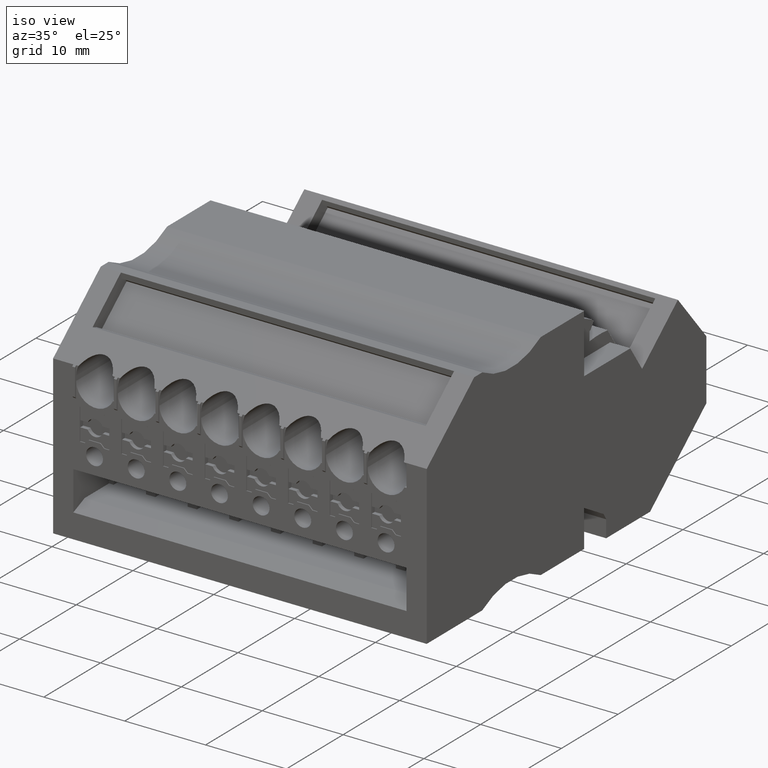
[diagram: clean part render]
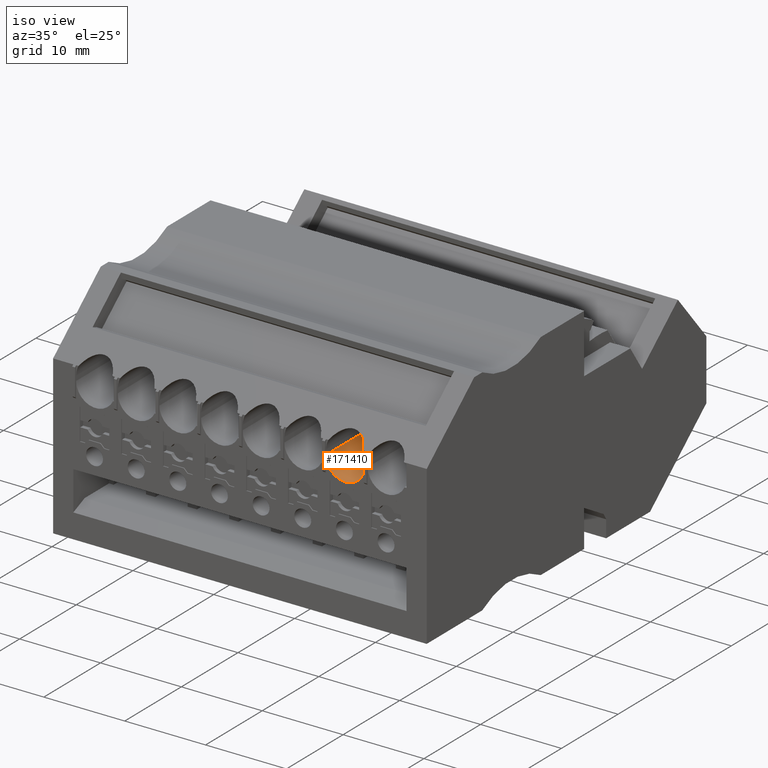
[diagram: same view with one face highlighted and labeled with its STEP entity id]
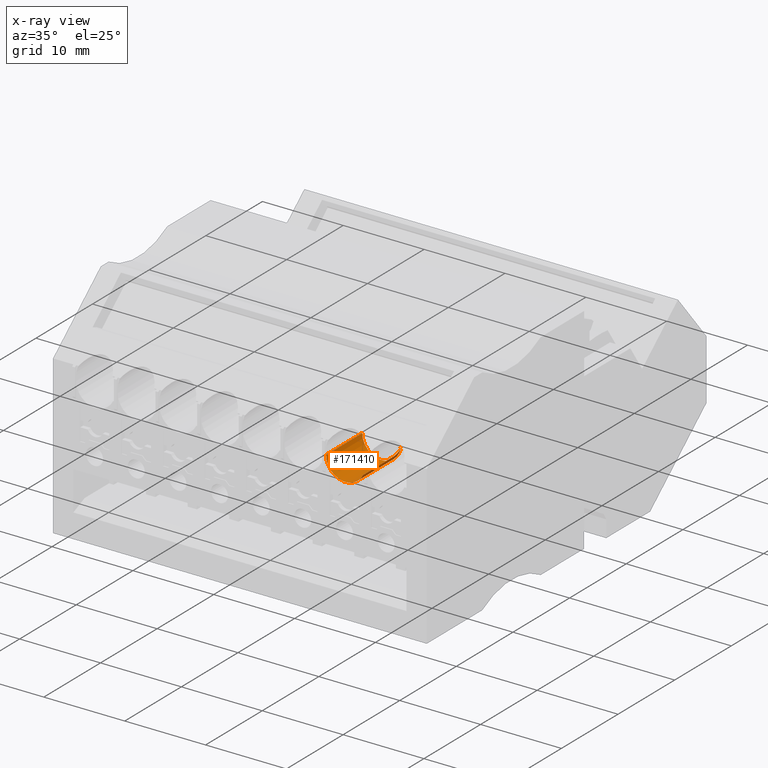
[diagram: x-ray of the same camera — body ghosted, the highlighted face saturated]
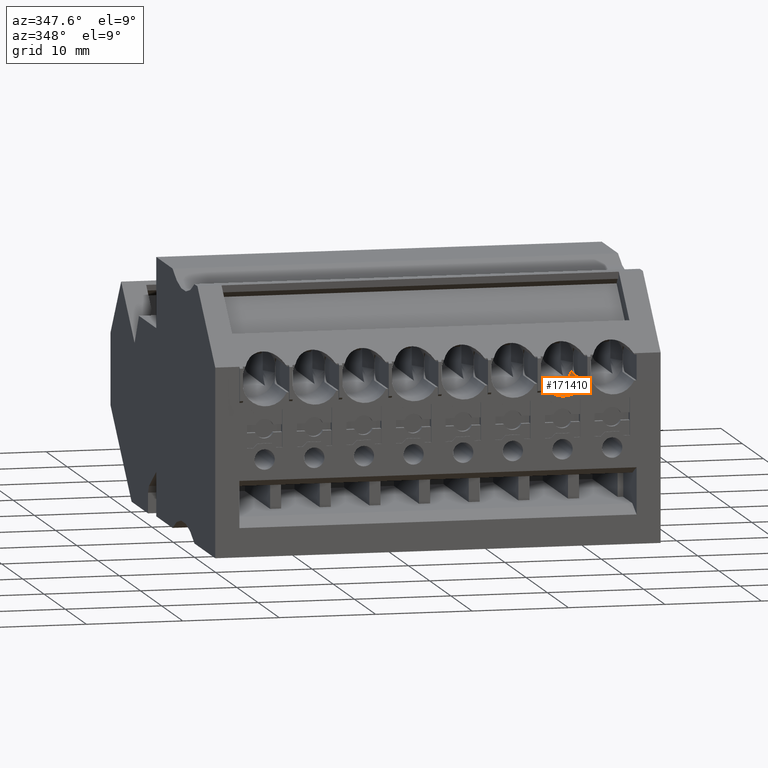
[diagram: same view with one face highlighted and labeled with its STEP entity id]
A machine part, iso view. The second image highlights one B-rep face of the part: STEP entity #171410.
The next image is the same camera in x-ray: the body ghosted, the highlighted face saturated — about 0% of this face is hidden behind the body in this view.
A second angle (auxiliary view) of the same face is appended — the face is thin or edge-on in the first view.
In plain terms, the highlighted cylindrical surface (edge-blend (fillet) strip) has radius 2.4 mm, axis along (0, 1, -0).
Its self-contained STEP definition (entity closure, byte-faithful):
#93730=CARTESIAN_POINT('',(428.516102328485,688.734358744494,
101.769999980095));
#93740=DIRECTION('',(-1.,1.98497844528636E-9,-5.36928806118194E-11));
#93750=DIRECTION('',(-1.98495192504897E-9,-1.,4.42871223279918E-10));
#93760=AXIS2_PLACEMENT_3D('',#93730,#93740,#93750);
#93770=CONICAL_SURFACE('',#93760,1.4398990952349,0.5235987755983);
#93780=CARTESIAN_POINT('',(425.8729682995,688.734358750863,
104.289999985316));
#93790=DIRECTION('',(-5.44204199246324E-11,4.40093160438588E-10,1.));
#93800=DIRECTION('',(-1.97700977810886E-9,-1.,4.40093326637415E-10));
#93810=AXIS2_PLACEMENT_3D('',#93780,#93790,#93800);
#93820=CYLINDRICAL_SURFACE('',#93810,1.030190473625);
#93980=CARTESIAN_POINT('',(426.853158780204,688.417311382792,
104.148966345585));
#93990=VERTEX_POINT('',#93980);
#94020=CARTESIAN_POINT('',(424.131789648345,688.734358753251,
101.769999979911));
#94030=DIRECTION('',(1.,-1.97325417117253E-9,5.38247277123213E-11));
#94040=DIRECTION('',(-1.97325411566115E-9,-1.,4.4307472459233E-10));
#94050=AXIS2_PLACEMENT_3D('',#94020,#94030,#94040);
#94060=CYLINDRICAL_SURFACE('',#94050,2.40000000000534);
#94070=CARTESIAN_POINT('',(426.853158781247,688.734358746681,
99.3699999800517));
#94080=CARTESIAN_POINT('',(426.853158781169,688.693683370409,
99.369999980072));
#94090=CARTESIAN_POINT('',(426.85315878109,688.652944201267,
99.3710346910474));
#94100=CARTESIAN_POINT('',(426.853158781012,688.612219764297,
99.3731098973217));
#94110=CARTESIAN_POINT('',(426.853158780933,688.57149540187,
99.3751850997975));
#94120=CARTESIAN_POINT('',(426.853158780854,688.530786385799,
99.3783007938754));
#94130=CARTESIAN_POINT('',(426.853158780776,688.490172960927,
99.3824545246833));
#94140=CARTESIAN_POINT('',(426.853158780697,688.449559555597,
99.3866082534925));
#94150=CARTESIAN_POINT('',(426.853158780619,688.409042363304,
99.3917999627167));
#94160=CARTESIAN_POINT('',(426.853158780541,688.368701336684,
99.3980188128335));
#94170=CARTESIAN_POINT('',(426.853158780463,688.328360275844,
99.4042376682256));
#94180=CARTESIAN_POINT('',(426.853158780385,688.288195994095,
99.4114835570226));
#94190=CARTESIAN_POINT('',(426.853158780308,688.248286194515,
99.4197375536693));
#94200=CARTESIAN_POINT('',(426.85315878023,688.208376306634,
99.427991568578));
#94210=CARTESIAN_POINT('',(426.853158780153,688.168721489918,
99.4372535354984));
#94220=CARTESIAN_POINT('',(426.853158780076,688.129395293165,
99.4474971881354));
#94230=CARTESIAN_POINT('',(426.85315878,688.090068952314,
99.4577408783065));
#94240=CARTESIAN_POINT('',(426.853158779924,688.051071779393,
99.4689660544413));
#94250=CARTESIAN_POINT('',(426.853158779849,688.012471321215,
99.4811403200411));
#94260=CARTESIAN_POINT('',(426.853158779698,687.935387271052,
99.5054519926096));
#94270=CARTESIAN_POINT('',(426.853158779549,687.8592580133,
99.5337467705649));
#94280=CARTESIAN_POINT('',(426.853158779402,687.784483582451,
99.5659724915428));
#94290=CARTESIAN_POINT('',(426.853158779329,687.747104685598,
99.5820817669566));
#94300=CARTESIAN_POINT('',(426.853158779256,687.710082431599,
99.5991655616722));
#94310=CARTESIAN_POINT('',(426.853158779184,687.673491333257,
99.6171970795071));
#94320=CARTESIAN_POINT('',(426.853158779112,687.636900290756,
99.6352285698247));
#94330=CARTESIAN_POINT('',(426.853158779041,687.600740967576,
99.6542075311167));
#94340=CARTESIAN_POINT('',(426.853158778971,687.565085843771,
99.6740990101299));
#94350=CARTESIAN_POINT('',(426.8531587789,687.529430726595,
99.6939904854453));
#94360=CARTESIAN_POINT('',(426.853158778831,687.494280355993,
99.7147941764139));
#94370=CARTESIAN_POINT('',(426.853158778762,687.459703316351,
99.7364677007711));
#94380=CARTESIAN_POINT('',(426.853158778694,687.425126237065,
99.7581412499778));
#94390=CARTESIAN_POINT('',(426.853158778626,687.391123005377,
99.780684288357));
#94400=CARTESIAN_POINT('',(426.85315877856,687.357756667707,
99.8040481208076));
#94410=CARTESIAN_POINT('',(426.853158778494,687.32439024576,
99.8274120122702));
#94420=CARTESIAN_POINT('',(426.853158778429,687.291661190286,
99.8515963205457));
#94430=CARTESIAN_POINT('',(426.853158778365,687.259625589397,
99.8765475483089));
#94440=CARTESIAN_POINT('',(426.853158778301,687.227589860247,
99.9014988759685));
#94450=CARTESIAN_POINT('',(426.853158778239,687.196248000292,
99.9272167237782));
#94460=CARTESIAN_POINT('',(426.853158778177,687.165647955532,
99.9536447146993));
#94470=CARTESIAN_POINT('',(426.853158778116,687.135055725598,
99.9800659562782));
#94480=CARTESIAN_POINT('',(426.853158778056,687.105058183405,
100.007323655537));
#94490=CARTESIAN_POINT('',(426.853158777997,687.075716035865,
100.035380611463));
#94500=CARTESIAN_POINT('',(426.853158777938,687.04637416054,
100.063437307096));
#94510=CARTESIAN_POINT('',(426.85315877788,687.017688815462,
100.092292304631));
#94520=CARTESIAN_POINT('',(426.853158777824,686.989721109414,
100.121898189975));
#94530=CARTESIAN_POINT('',(426.853158777776,686.965993391958,
100.147015733805));
#94540=CARTESIAN_POINT('',(426.853158777729,686.942782420652,
100.172673380949));
#94550=CARTESIAN_POINT('',(426.853158777683,686.920123549233,
100.198837784734));
#94560=CARTESIAN_POINT('',(426.853158777637,686.897464697847,
100.225002165386));
#94570=CARTESIAN_POINT('',(426.853158777592,686.875358131865,
100.251673102941));
#94580=CARTESIAN_POINT('',(426.853158777548,686.853836541991,
100.278813796785));
#94590=CARTESIAN_POINT('',(426.853158777505,686.83231495602,
100.305954485706));
#94600=CARTESIAN_POINT('',(426.853158777462,686.811378518815,
100.33356471631));
#94610=CARTESIAN_POINT('',(426.85315877742,686.791056623652,
100.361604845873));
#94620=CARTESIAN_POINT('',(426.853158777378,686.770734718004,
100.389644989903));
#94630=CARTESIAN_POINT('',(426.853158777338,686.751027511002,
100.418114807387));
#94640=CARTESIAN_POINT('',(426.853158777299,686.731960595942,
100.446972527153));
#94650=CARTESIAN_POINT('',(426.853158777259,686.71289365746,
100.475830282369));
#94660=CARTESIAN_POINT('',(426.853158777221,686.694467148538,
100.50507570769));
#94670=CARTESIAN_POINT('',(426.853158777185,686.676702492146,
100.534665720328));
#94680=CARTESIAN_POINT('',(426.853158777148,686.658937800644,
100.564255791445));
#94690=CARTESIAN_POINT('',(426.853158777112,686.641835077573,
100.59419021566));
#94700=CARTESIAN_POINT('',(426.853158777078,686.62541134206,
100.624425521757));
#94710=CARTESIAN_POINT('',(426.853158777044,686.608985468344,
100.654664764184));
#94720=CARTESIAN_POINT('',(426.85315877701,686.593247197988,
100.685187745181));
#94730=CARTESIAN_POINT('',(426.853158776979,686.578185292078,
100.715999966529));
#94740=CARTESIAN_POINT('',(426.853158776947,686.563113165361,
100.746833096636));
#94750=CARTESIAN_POINT('',(426.853158776916,686.548672586347,
100.778051199443));
#94760=CARTESIAN_POINT('',(426.853158776887,686.534889544521,
100.809617127494));
#94770=CARTESIAN_POINT('',(426.853158776857,686.521106537453,
100.841182975942));
#94780=CARTESIAN_POINT('',(426.853158776829,686.50798119301,
100.873096429918));
#94790=CARTESIAN_POINT('',(426.853158776803,686.495537044039,
100.905316582255));
#94800=CARTESIAN_POINT('',(426.853158776776,686.483092916705,
100.937536678573));
#94810=CARTESIAN_POINT('',(426.85315877675,686.471330097266,
100.970063233909));
#94820=CARTESIAN_POINT('',(426.853158776726,686.460268946829,
101.00285229103));
#94830=CARTESIAN_POINT('',(426.853158776702,686.449207807496,
101.035641315236));
#94840=CARTESIAN_POINT('',(426.853158776679,686.438848434162,
101.068692587369));
#94850=CARTESIAN_POINT('',(426.853158776657,686.429207474042,
101.10195985795));
#94860=CARTESIAN_POINT('',(426.853158776636,686.419566516797,
101.13522711861));
#94870=CARTESIAN_POINT('',(426.853158776616,686.410644052442,
101.168710114278));
#94880=CARTESIAN_POINT('',(426.853158776597,686.402452637502,
101.202361105062));
#94890=CARTESIAN_POINT('',(426.853158776578,686.394261219297,
101.236012109259));
#94900=CARTESIAN_POINT('',(426.853158776561,686.38680091138,
101.269830840437));
#94910=CARTESIAN_POINT('',(426.853158776545,686.380079963977,
101.303768913219));
#94920=CARTESIAN_POINT('',(426.853158776529,686.373359009133,
101.337707023574));
#94930=CARTESIAN_POINT('',(426.853158776514,686.367377455742,
101.371764207699));
#94940=CARTESIAN_POINT('',(426.853158776501,686.362139193414,
101.405892323679));
#94950=CARTESIAN_POINT('',(426.853158776488,686.356900921408,
101.440020502717));
#94960=CARTESIAN_POINT('',(426.853158776476,686.352405960676,
101.474219351341));
#94970=CARTESIAN_POINT('',(426.853158776466,686.348653951899,
101.508441905327));
#94980=CARTESIAN_POINT('',(426.853158776455,686.34490193322,
101.542664549638));
#94990=CARTESIAN_POINT('',(426.853158776446,686.341892865551,
101.576910648309));
#95000=CARTESIAN_POINT('',(426.853158776439,686.339622427658,
101.611135394228));
#95010=CARTESIAN_POINT('',(426.853158776431,686.337352204325,
101.645356905852));
#95020=CARTESIAN_POINT('',(426.853158776425,686.335811168686,
101.679697213878));
#95030=CARTESIAN_POINT('',(426.853158776421,686.335009538266,
101.714112858593));
#95040=CARTESIAN_POINT('',(426.853158776416,686.334207910583,
101.748528385777));
#95050=CARTESIAN_POINT('',(426.853158776413,686.334145728487,
101.783018889082));
#95060=CARTESIAN_POINT('',(426.853158776411,686.334829597129,
101.817537909309));
#95070=CARTESIAN_POINT('',(426.853158776409,686.335513464495,
101.852056865124));
#95080=CARTESIAN_POINT('',(426.853158776409,686.33694339741,
101.886604075469));
#95090=CARTESIAN_POINT('',(426.85315877641,686.339121950878,
101.921131334542));
#95100=CARTESIAN_POINT('',(426.853158776411,686.341300501896,
101.955658554791));
#95110=CARTESIAN_POINT('',(426.853158776413,686.344227668462,
101.990165553012));
#95120=CARTESIAN_POINT('',(426.853158776417,686.347901718063,
102.024603288874));
#95130=CARTESIAN_POINT('',(426.853158776421,686.351575766139,
102.059041010434));
#95140=CARTESIAN_POINT('',(426.853158776427,686.355996672517,
102.093409195843));
#95150=CARTESIAN_POINT('',(426.853158776433,686.361158350485,
102.127658859197));
#95160=CARTESIAN_POINT('',(426.85315877644,686.366320029907,
102.161908532192));
#95170=CARTESIAN_POINT('',(426.853158776449,686.372222436916,
102.196039411409));
#95180=CARTESIAN_POINT('',(426.853158776458,686.378855229646,
102.230003431792));
#95190=CARTESIAN_POINT('',(426.853158776468,686.38548802892,
102.263967485687));
#95200=CARTESIAN_POINT('',(426.853158776479,686.392851151461,
102.297764416134));
#95210=CARTESIAN_POINT('',(426.853158776491,686.400930264695,
102.331347923744));
#95220=CARTESIAN_POINT('',(426.853158776504,686.409009391829,
102.364931489135));
#95230=CARTESIAN_POINT('',(426.853158776518,686.41780442997,
102.398301379318));
#95240=CARTESIAN_POINT('',(426.853158776533,686.42729748983,
102.431413883469));
#95250=CARTESIAN_POINT('',(426.853158776548,686.436790573444,
102.464526470478));
#95260=CARTESIAN_POINT('',(426.853158776565,686.446981583567,
102.4973814367));
#95270=CARTESIAN_POINT('',(426.853158776583,686.457849685727,
102.529938457801));
#95280=CARTESIAN_POINT('',(426.853158776601,686.468710430223,
102.562473437925));
#95290=CARTESIAN_POINT('',(426.85315877662,686.480276125587,
102.594800353539));
#95300=CARTESIAN_POINT('',(426.853158776641,686.49256294287,
102.62694313375));
#95310=CARTESIAN_POINT('',(426.853158776662,686.504847640914,
102.659080369951));
#95320=CARTESIAN_POINT('',(426.853158776684,686.5178451227,
102.691009402319));
#95330=CARTESIAN_POINT('',(426.853158776707,686.531544320008,
102.722684920832));
#95340=CARTESIAN_POINT('',(426.853158776731,686.545243489988,
102.754360376159));
#95350=CARTESIAN_POINT('',(426.853158776756,686.559644291834,
102.785782070325));
#95360=CARTESIAN_POINT('',(426.853158776782,686.574731239828,
102.816904477367));
#95370=CARTESIAN_POINT('',(426.853158776808,686.589818169025,
102.848026845635));
#95380=CARTESIAN_POINT('',(426.853158776836,686.60559113887,
102.878849678525));
#95390=CARTESIAN_POINT('',(426.853158776864,686.622030352942,
102.909328182096));
#95400=CARTESIAN_POINT('',(426.853158776893,686.638469558256,
102.93980666943));
#95410=CARTESIAN_POINT('',(426.853158776923,686.65557488255,
102.969940583204));
#95420=CARTESIAN_POINT('',(426.853158776955,686.673322475277,
102.999686721889));
#95430=CARTESIAN_POINT('',(426.853158776986,686.691070070927,
103.029432865473));
#95440=CARTESIAN_POINT('',(426.853158777019,686.70945979236,
103.058790998323));
#95450=CARTESIAN_POINT('',(426.853158777053,686.728464136132,
103.087720286717));
#95460=CARTESIAN_POINT('',(426.853158777087,686.747468496383,
103.116649600194));
#95470=CARTESIAN_POINT('',(426.853158777122,686.767087321559,
103.145149846522));
#95480=CARTESIAN_POINT('',(426.853158777158,686.787290000565,
103.173183251499));
#95490=CARTESIAN_POINT('',(426.853158777201,686.811102766214,
103.206226042647));
#95500=CARTESIAN_POINT('',(426.853158777245,686.835726475805,
103.238619696977));
#95510=CARTESIAN_POINT('',(426.853158777291,686.861106838596,
103.270309043013));
#95520=CARTESIAN_POINT('',(426.853158777337,686.886487316244,
103.301998532456));
#95530=CARTESIAN_POINT('',(426.853158777385,686.912623989182,
103.332983244449));
#95540=CARTESIAN_POINT('',(426.853158777434,686.939460016947,
103.363216395275));
#95550=CARTESIAN_POINT('',(426.853158777483,686.966298231345,
103.393452009535));
#95560=CARTESIAN_POINT('',(426.853158777533,686.993965675277,
103.423082119228));
#95570=CARTESIAN_POINT('',(426.853158777585,687.022422385446,
103.452044536839));
#95580=CARTESIAN_POINT('',(426.853158777637,687.050878980791,
103.481006837585));
#95590=CARTESIAN_POINT('',(426.853158777691,687.080124485035,
103.509300995866));
#95600=CARTESIAN_POINT('',(426.853158777746,687.110110470009,
103.536866565812));
#95610=CARTESIAN_POINT('',(426.853158777801,687.140096378379,
103.564432065337));
#95620=CARTESIAN_POINT('',(426.853158777858,687.170822349656,
103.591268540172));
#95630=CARTESIAN_POINT('',(426.853158777916,687.20223240623,
103.617319355056));
#95640=CARTESIAN_POINT('',(426.853158777974,687.233642425929,
103.643370139357));
#95650=CARTESIAN_POINT('',(426.853158778033,687.265736064721,
103.668634854079));
#95660=CARTESIAN_POINT('',(426.853158778094,687.298450999984,
103.693062365825));
#95670=CARTESIAN_POINT('',(426.853158778155,687.331165940446,
103.717489881452));
#95680=CARTESIAN_POINT('',(426.853158778217,687.364501675098,
103.741079822048));
#95690=CARTESIAN_POINT('',(426.85315877828,687.398391012671,
103.763787885152));
#95700=CARTESIAN_POINT('',(426.853158778343,687.432280401026,
103.786495982284));
#95710=CARTESIAN_POINT('',(426.853158778407,687.466722866875,
103.808321877015));
#95720=CARTESIAN_POINT('',(426.853158778473,687.501648096185,
103.829229071057));
#95730=CARTESIAN_POINT('',(426.853158778603,687.571512138131,
103.871051590491));
#95740=CARTESIAN_POINT('',(426.853158778737,687.643249508206,
103.909161767755));
#95750=CARTESIAN_POINT('',(426.853158778875,687.716443826851,
103.943441769839));
#95760=CARTESIAN_POINT('',(426.853158778944,687.753094403956,
103.960606788693));
#95770=CARTESIAN_POINT('',(426.853158779014,687.79026388212,
103.976883788766));
#95780=CARTESIAN_POINT('',(426.853158779085,687.827889697604,
103.992231709854));
#95790=CARTESIAN_POINT('',(426.853158779156,687.865515374064,
104.007579574233));
#95800=CARTESIAN_POINT('',(426.853158779228,687.9035968719,
104.021998089075));
#95810=CARTESIAN_POINT('',(426.853158779301,687.942064840948,
104.035451450529));
#95820=CARTESIAN_POINT('',(426.853158779373,687.98053272379,
104.048904781834));
#95830=CARTESIAN_POINT('',(426.853158779447,688.019386515137,
104.061392727204));
#95840=CARTESIAN_POINT('',(426.853158779521,688.058551748934,
104.072886190924));
#95850=CARTESIAN_POINT('',(426.853158779596,688.09771694844,
104.084379644581));
#95860=CARTESIAN_POINT('',(426.853158779671,688.137192996827,
104.094878428658));
#95870=CARTESIAN_POINT('',(426.853158779746,688.176902100452,
104.104361153111));
#95880=CARTESIAN_POINT('',(426.853158779822,688.216611222109,
104.113843881871));
#95890=CARTESIAN_POINT('',(426.853158779898,688.256552790068,
104.122310412621));
#95900=CARTESIAN_POINT('',(426.853158779974,688.296647582181,
104.12974762238));
#95910=CARTESIAN_POINT('',(426.853158780051,688.336742446562,
104.137184845544));
#95920=CARTESIAN_POINT('',(426.853158780127,688.376989926523,
104.143592662438));
#95930=CARTESIAN_POINT('',(426.853158780204,688.417311382792,
104.148966345585));
#95940=B_SPLINE_CURVE_WITH_KNOTS('',3,(#94070,#94080,#94090,#94100,
#94110,#94120,#94130,#94140,#94150,#94160,#94170,#94180,#94190,#94200,
#94210,#94220,#94230,#94240,#94250,#94260,#94270,#94280,#94290,#94300,
#94310,#94320,#94330,#94340,#94350,#94360,#94370,#94380,#94390,#94400,
#94410,#94420,#94430,#94440,#94450,#94460,#94470,#94480,#94490,#94500,
#94510,#94520,#94530,#94540,#94550,#94560,#94570,#94580,#94590,#94600,
#94610,#94620,#94630,#94640,#94650,#94660,#94670,#94680,#94690,#94700,
#94710,#94720,#94730,#94740,#94750,#94760,#94770,#94780,#94790,#94800,
#94810,#94820,#94830,#94840,#94850,#94860,#94870,#94880,#94890,#94900,
#94910,#94920,#94930,#94940,#94950,#94960,#94970,#94980,#94990,#95000,
#95010,#95020,#95030,#95040,#95050,#95060,#95070,#95080,#95090,#95100,
#95110,#95120,#95130,#95140,#95150,#95160,#95170,#95180,#95190,#95200,
#95210,#95220,#95230,#95240,#95250,#95260,#95270,#95280,#95290,#95300,
#95310,#95320,#95330,#95340,#95350,#95360,#95370,#95380,#95390,#95400,
#95410,#95420,#95430,#95440,#95450,#95460,#95470,#95480,#95490,#95500,
#95510,#95520,#95530,#95540,#95550,#95560,#95570,#95580,#95590,#95600,
#95610,#95620,#95630,#95640,#95650,#95660,#95670,#95680,#95690,#95700,
#95710,#95720,#95730,#95740,#95750,#95760,#95770,#95780,#95790,#95800,
#95810,#95820,#95830,#95840,#95850,#95860,#95870,#95880,#95890,#95900,
#95910,#95920,#95930),.UNSPECIFIED.,.F.,.F.,(4,3,3,3,3,3,3,3,3,3,3,3,3,3
,3,3,3,3,3,3,3,3,3,3,3,3,3,3,3,3,3,3,3,3,3,3,3,3,3,3,3,3,3,3,3,3,3,3,3,3
,3,3,3,3,3,3,3,3,3,3,3,3,4),(0.,0.122191765595412,0.244609056544193,
0.367087045831654,0.489458423801797,0.611560263357789,0.733241185963943,
0.976604364333224,1.09886011892091,1.22130533799869,1.34377404816378,
1.46609931715949,1.58812014524631,1.70968876137011,1.83122749422192,
1.95322595070557,2.05698142363252,2.16086508293737,2.26477544106525,
2.36861022891466,2.47226940355319,2.57565826657825,2.67870102312926,
2.78185301029252,2.8853356847404,2.98905997162659,3.0929291624958,
3.19684219557727,3.30069672376232,3.40439211840592,3.50783255877536,
3.61093035470486,3.71401900960384,3.81745222138979,3.92114259889084,
4.02499447620774,4.12890730317536,4.23277873869417,4.3365076548321,
4.43999720151685,4.54315808004234,4.64619471399073,4.74957599876077,
4.85322977269738,4.95706150565493,5.06097124560961,5.16485674149473,
5.2686164518207,5.39062280575931,5.51217178483852,5.63372980354978,
5.75574284762265,5.87806349605749,6.00053094333151,6.12297830861076,
6.24523953068529,6.48861678609291,6.61028769755704,6.73238243162264,
6.85474992357861,6.97722740801386,7.09964759578539,7.221845540645),
.UNSPECIFIED.);
#95950=SURFACE_CURVE('',#95940,(#94060,#93770),.CURVE_3D.);
#95960=CARTESIAN_POINT('',(426.853158781278,688.73435874678,
99.3699999800697));
#95970=VERTEX_POINT('',#95960);
#95980=EDGE_CURVE('',#95970,#93990,#95950,.T.);
#170220=CARTESIAN_POINT('',(426.782967967934,688.251458123936,
104.120916181725));
#170230=CARTESIAN_POINT('',(426.778736687573,688.243484508846,
104.119278325087));
#170240=CARTESIAN_POINT('',(426.774404755586,688.235574367112,
104.11761121746));
#170250=CARTESIAN_POINT('',(426.769975079461,688.227731423583,
104.115917445381));
#170260=CARTESIAN_POINT('',(426.765545401812,688.219888477357,
104.11422367272));
#170270=CARTESIAN_POINT('',(426.76101798542,688.212112737553,
104.112503238293));
#170280=CARTESIAN_POINT('',(426.756395894634,688.204407718971,
104.110758811453));
#170290=CARTESIAN_POINT('',(426.75177310549,688.196701536227,
104.109014121044));
#170300=CARTESIAN_POINT('',(426.747060383044,688.189073422206,
104.107247196819));
#170310=CARTESIAN_POINT('',(426.742240937337,688.181495754125,
104.105453364283));
#170320=CARTESIAN_POINT('',(426.737422376388,688.173919477158,
104.103659861059));
#170330=CARTESIAN_POINT('',(426.732501900256,688.166401712557,
104.101841266589));
#170340=CARTESIAN_POINT('',(426.727481280571,688.158945875405,
104.099999985614));
#170350=B_SPLINE_CURVE_WITH_KNOTS('',3,(#170220,#170230,#170240,#170250,
#170260,#170270,#170280,#170290,#170300,#170310,#170320,#170330,#170340)
,.UNSPECIFIED.,.F.,.F.,(4,3,3,3,4),(0.,0.027510060763815,
0.0549881394538619,0.0824383099052414,0.109936069395702),.UNSPECIFIED.);
#170360=SURFACE_CURVE('',#170350,(#93820,#94060),.CURVE_3D.);
#170370=CARTESIAN_POINT('',(426.782967967936,688.251458123934,
104.120916181725));
#170380=VERTEX_POINT('',#170370);
#170390=CARTESIAN_POINT('',(426.727481280571,688.158945875405,
104.099999985614));
#170400=VERTEX_POINT('',#170390);
#170410=EDGE_CURVE('',#170380,#170400,#170360,.T.);
#170420=ORIENTED_EDGE('',*,*,#170410,.F.);
#170430=CARTESIAN_POINT('',(425.892777154873,687.704358740418,
103.937740734973));
#170440=CARTESIAN_POINT('',(425.91366472362,687.704760448014,
103.937931605986));
#170450=CARTESIAN_POINT('',(425.934461339594,687.705794835509,
103.938423289484));
#170460=CARTESIAN_POINT('',(425.95519664482,687.707455195755,
103.939209303937));
#170470=CARTESIAN_POINT('',(425.975947247566,687.709116780935,
103.939995898274));
#170480=CARTESIAN_POINT('',(425.996684941262,687.711410993162,
103.941079971071));
#170490=CARTESIAN_POINT('',(426.017347856412,687.714335733568,
103.942453212405));
#170500=CARTESIAN_POINT('',(426.038010635552,687.717260454723,
103.9438264447));
#170510=CARTESIAN_POINT('',(426.058597536656,687.720815607166,
103.94548876882));
#170520=CARTESIAN_POINT('',(426.079044514232,687.724990133369,
103.947423915996));
#170530=CARTESIAN_POINT('',(426.09949145328,687.729164651707,
103.949359059525));
#170540=CARTESIAN_POINT('',(426.119797422523,687.73395833659,
103.951566878866));
#170550=CARTESIAN_POINT('',(426.139899888706,687.739351243888,
103.954023804116));
#170560=CARTESIAN_POINT('',(426.160002401089,687.744744163581,
103.956480735012));
#170570=CARTESIAN_POINT('',(426.179900477877,687.750736017598,
103.959186575714));
#170580=CARTESIAN_POINT('',(426.199536139703,687.757298948197,
103.962111780398));
#170590=CARTESIAN_POINT('',(426.219171924296,687.763861919828,
103.96503700337));
#170600=CARTESIAN_POINT('',(426.238544509047,687.770995629074,
103.968181369487));
#170610=CARTESIAN_POINT('',(426.257602907661,687.778666001893,
103.971511136718));
#170620=CARTESIAN_POINT('',(426.276656054202,687.786334260927,
103.97483998634));
#170630=CARTESIAN_POINT('',(426.295490278995,687.794576885895,
103.978370690769));
#170640=CARTESIAN_POINT('',(426.314062665507,687.803376381271,
103.982074081659));
#170650=CARTESIAN_POINT('',(426.332634869307,687.812175790079,
103.985777436115));
#170660=CARTESIAN_POINT('',(426.350944273208,687.821531671788,
103.989653250645));
#170670=CARTESIAN_POINT('',(426.368947193057,687.831420575047,
103.993668717577));
#170680=CARTESIAN_POINT('',(426.386950084582,687.841309462749,
103.997684178192));
#170690=CARTESIAN_POINT('',(426.404646053922,687.85173114201,
104.001839138372));
#170700=CARTESIAN_POINT('',(426.42199365458,687.862657212685,
104.006098464466));
#170710=CARTESIAN_POINT('',(426.439341265818,687.873583290024,
104.010357793157));
#170720=CARTESIAN_POINT('',(426.456340119572,687.885013505815,
104.014721331777));
#170730=CARTESIAN_POINT('',(426.472952248948,687.896915216905,
104.019152783026));
#170740=CARTESIAN_POINT('',(426.489564422736,687.908816959812,
104.023584246122));
#170750=CARTESIAN_POINT('',(426.505789530622,687.921189927583,
104.028083469823));
#170760=CARTESIAN_POINT('',(426.521594039875,687.933998168957,
104.032614163386));
#170770=CARTESIAN_POINT('',(426.53739566556,687.946804073438,
104.037144030314));
#170780=CARTESIAN_POINT('',(426.552774206761,687.960039035731,
104.041703897899));
#170790=CARTESIAN_POINT('',(426.567808638891,687.973773900315,
104.046293170477));
#170800=CARTESIAN_POINT('',(426.582834814477,687.987501222045,
104.050879922738));
#170810=CARTESIAN_POINT('',(426.597478044258,688.001696143551,
104.05548476545));
#170820=CARTESIAN_POINT('',(426.611701596534,688.016329832249,
104.060073008499));
#170830=CARTESIAN_POINT('',(426.625925123658,688.03096349507,
104.064661243436));
#170840=CARTESIAN_POINT('',(426.639728688231,688.04603565553,
104.069232745897));
#170850=CARTESIAN_POINT('',(426.653078155326,688.061513282021,
104.073753217389));
#170860=CARTESIAN_POINT('',(426.666427623188,688.076990909404,
104.07827368914));
#170870=CARTESIAN_POINT('',(426.679322722639,688.092873694155,
104.082742997655));
#170880=CARTESIAN_POINT('',(426.691732845273,688.109125169979,
104.087128153605));
#170890=CARTESIAN_POINT('',(426.704142992617,688.125376678162,
104.091513318287));
#170900=CARTESIAN_POINT('',(426.716067912383,688.141996530522,
104.095814203975));
#170910=CARTESIAN_POINT('',(426.727481280571,688.158945875405,
104.099999985614));
#170920=B_SPLINE_CURVE_WITH_KNOTS('',3,(#170430,#170440,#170450,#170460,
#170470,#170480,#170490,#170500,#170510,#170520,#170530,#170540,#170550,
#170560,#170570,#170580,#170590,#170600,#170610,#170620,#170630,#170640,
#170650,#170660,#170670,#170680,#170690,#170700,#170710,#170720,#170730,
#170740,#170750,#170760,#170770,#170780,#170790,#170800,#170810,#170820,
#170830,#170840,#170850,#170860,#170870,#170880,#170890,#170900,#170910)
,.UNSPECIFIED.,.F.,.F.,(4,3,3,3,3,3,3,3,3,3,3,3,3,3,3,3,4),(0.,
0.0625252180356846,0.125151842016034,0.187970185393013,0.250855668403677
,0.313667860736343,0.376261267874284,0.43880019456201,0.501525221720832,
0.564337061076941,0.627121981040788,0.689759731555223,0.752258541676028,
0.814936932118631,0.877720869615619,0.940498976397281,1.00316376586853),
.UNSPECIFIED.);
#170930=SURFACE_CURVE('',#170920,(#94060,#93820),.CURVE_3D.);
#170940=CARTESIAN_POINT('',(425.892777154874,687.704358740418,
103.937740734973));
#170950=VERTEX_POINT('',#170940);
#170960=EDGE_CURVE('',#170950,#170400,#170930,.T.);
#170970=ORIENTED_EDGE('',*,*,#170960,.T.);
#170980=CARTESIAN_POINT('',(424.131789646195,687.704358743901,
103.937740734882));
#170990=DIRECTION('',(1.,-1.97325411566138E-9,5.38247277123212E-11));
#171000=VECTOR('',#170990,1.);
#171010=LINE('',#170980,#171000);
#171020=CARTESIAN_POINT('',(420.453158774957,687.7043587512,
103.937740734684));
#171030=VERTEX_POINT('',#171020);
#171040=EDGE_CURVE('',#171030,#170950,#171010,.T.);
#171050=ORIENTED_EDGE('',*,*,#171040,.T.);
#171060=CARTESIAN_POINT('',(420.453158776722,688.73435876051,
101.769999979712));
#171070=DIRECTION('',(1.,-1.97325411566138E-9,5.38247277123212E-11));
#171080=DIRECTION('',(-1.97325411566115E-9,-1.,4.43074724592329E-10));
#171090=AXIS2_PLACEMENT_3D('',#171060,#171070,#171080);
#171100=CIRCLE('',#171090,2.40000000000534);
#171110=CARTESIAN_POINT('',(420.453158776455,688.734358759409,
99.3699999797186));
#171120=VERTEX_POINT('',#171110);
#171130=EDGE_CURVE('',#171030,#171120,#171100,.T.);
#171140=ORIENTED_EDGE('',*,*,#171130,.F.);
#171150=CARTESIAN_POINT('',(424.131789648474,688.73435875215,
99.3699999799051));
#171160=DIRECTION('',(1.,-1.97325411566138E-9,5.38247277123212E-11));
#171170=VECTOR('',#171160,1.);
#171180=LINE('',#171150,#171170);
#171190=EDGE_CURVE('',#171120,#95970,#171180,.T.);
#171200=ORIENTED_EDGE('',*,*,#171190,.F.);
#171210=ORIENTED_EDGE('',*,*,#95980,.F.);
#171220=CARTESIAN_POINT('',(426.782967967934,688.251458123936,
104.120916181725));
#171230=CARTESIAN_POINT('',(426.789985208355,688.264681727515,
104.123632436105));
#171240=CARTESIAN_POINT('',(426.796725331595,688.278079576785,
104.126268110383));
#171250=CARTESIAN_POINT('',(426.803176275481,688.29163362909,
104.128812068613));
#171260=CARTESIAN_POINT('',(426.80962721822,688.305187678985,
104.13135602639));
#171270=CARTESIAN_POINT('',(426.815788920912,688.318897809704,
104.133808236934));
#171280=CARTESIAN_POINT('',(426.82165093622,688.332744922908,
104.136158541007));
#171290=CARTESIAN_POINT('',(426.827512955564,688.346592045647,
104.138508846699));
#171300=CARTESIAN_POINT('',(426.833075233506,688.360576018498,
104.140757217776));
#171310=CARTESIAN_POINT('',(426.838329122673,688.374677095656,
104.142894648822));
#171320=CARTESIAN_POINT('',(426.843583020436,688.388778195887,
104.145032083366));
#171330=CARTESIAN_POINT('',(426.848528484424,688.402996260591,
104.1470585541));
#171340=CARTESIAN_POINT('',(426.853158780204,688.417311382891,
104.148966345599));
#171350=B_SPLINE_CURVE_WITH_KNOTS('',3,(#171220,#171230,#171240,#171250,
#171260,#171270,#171280,#171290,#171300,#171310,#171320,#171330,#171340)
,.UNSPECIFIED.,.F.,.F.,(4,3,3,3,4),(0.,0.0456632963448295,
0.0913335817005764,0.136964751624596,0.18251507008756),.UNSPECIFIED.);
#171360=SURFACE_CURVE('',#171350,(#94060,#93820),.CURVE_3D.);
#171370=EDGE_CURVE('',#170380,#93990,#171360,.T.);
#171380=ORIENTED_EDGE('',*,*,#171370,.T.);
#171390=EDGE_LOOP('',(#171380,#171210,#171200,#171140,#171050,#170970,
#170420));
#171400=FACE_OUTER_BOUND('',#171390,.T.);
#171410=ADVANCED_FACE('',(#171400),#94060,.F.);